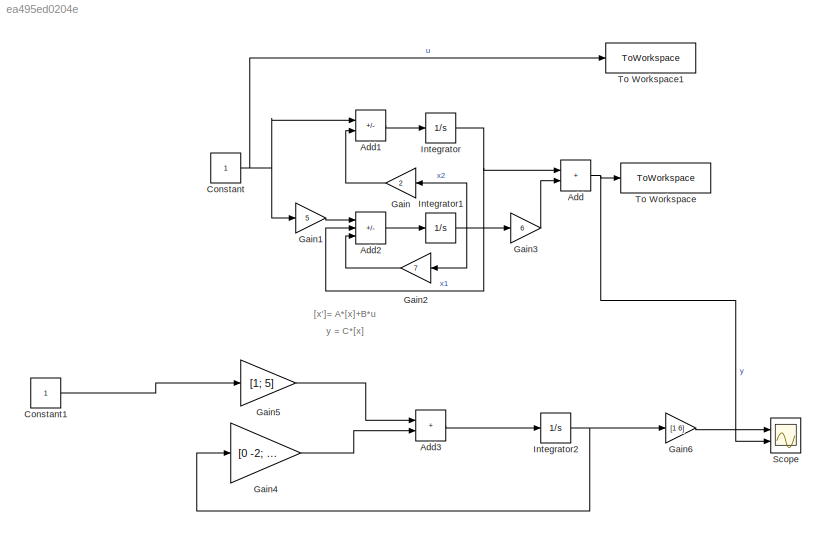
MODEL slx_ea495ed0204e
KIND model
CONFIG AbsTol = auto
CONFIG EnableMultiTasking = off
CONFIG FixedStep = auto
CONFIG MaxStep = auto
CONFIG MinStep = auto
CONFIG RelTol = 1e-3
CONFIG SampleTimeConstraint = Unconstrained
CONFIG SolverName = VariableStepAuto
CONFIG StartTime = 0.0
CONFIG StopTime = 25
BLOCK [Sum] Add
  IconShape = rectangular
  Ports = [2, 1]
BLOCK [Sum] Add1
  IconShape = rectangular
  Inputs = +-
  Ports = [2, 1]
BLOCK [Sum] Add2
  IconShape = rectangular
  Inputs = ++-
  Ports = [3, 1]
BLOCK [Sum] Add3
  IconShape = rectangular
  Ports = [2, 1]
BLOCK [Constant] Constant
  SampleTime = -1
BLOCK [Constant] Constant1
  SampleTime = -1
BLOCK [Gain] Gain
  Gain = 2
BLOCK [Gain] Gain1
  Gain = 5
BLOCK [Gain] Gain2
  Gain = 7
BLOCK [Gain] Gain3
  Gain = 6
BLOCK [Gain] Gain4
  Gain = [0 -2; 1 -7]
  Multiplication = Matrix(K*u)
BLOCK [Gain] Gain5
  Gain = [1; 5]
  Multiplication = Matrix(K*u)
BLOCK [Gain] Gain6
  Gain = [1 6]
  Multiplication = Matrix(K*u)
BLOCK [Integrator] Integrator
  Ports = [1, 1]
BLOCK [Integrator] Integrator1
  Ports = [1, 1]
BLOCK [Integrator] Integrator2
  Ports = [1, 1]
BLOCK [Scope] Scope
  Floating = off
  NumInputPorts = 2
  Ports = [2]
  ScopeSpecificationString = Simulink.scopes.TimeScopeBlockCfg('CurrentConfiguration', extmgr.ConfigurationSet(extmgr.Configuration('Core','General UI',true),extmgr.Configuration('Core','Source UI',true),extmgr.Configuration('Sources','WiredSimulink',true),extmgr.Configuration('Visuals','Time Domain',true,'SerializedDisplays',{struct('MinYLimReal','-0.51923','MaxYLimReal','4.67304','YLabelReal','','MinYLimMag','0.00000','MaxY...<+1401ch>
BLOCK [ToWorkspace] To Workspace
  FixptAsFi = on
  MaxDataPoints = inf
  Ports = [1]
  SampleTime = -1
  SaveFormat = Timeseries
  VariableName = signal
BLOCK [ToWorkspace] To Workspace1
  FixptAsFi = on
  MaxDataPoints = inf
  Ports = [1]
  SampleTime = -1
  SaveFormat = Timeseries
  VariableName = signalin
ANNOTATION (root): [x']= A*[x]+B*u
ANNOTATION (root): y = C*[x]
LINE Add1:1 -> Integrator:1
LINE Add2:1 -> Integrator1:1
LINE Add3:1 -> Integrator2:1
NET Add:1 -> Scope:2, To Workspace:1
LINE Constant1:1 -> Gain5:1
NET Constant:1 -> Add1:1, Gain1:1, To Workspace1:1
LINE Gain1:1 -> Add2:1
LINE Gain2:1 -> Add2:3
LINE Gain3:1 -> Add:2
LINE Gain4:1 -> Add3:2
LINE Gain5:1 -> Add3:1
LINE Gain6:1 -> Scope:1
LINE Gain:1 -> Add1:2
NET Integrator1:1 -> Gain2:1, Gain3:1, Gain:1
NET Integrator2:1 -> Gain4:1, Gain6:1
NET Integrator:1 -> Add2:2, Add:1
note: NET lines group one-source signal fan-out (src -> all destinations, sorted); 1:1 wires keep LINE
